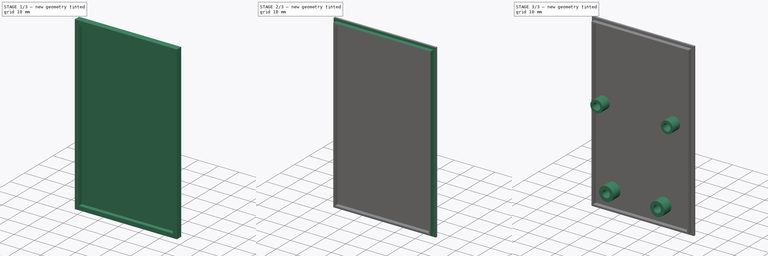
[diagram: build sequence overview — one tinted view per stage of 3, left to right]
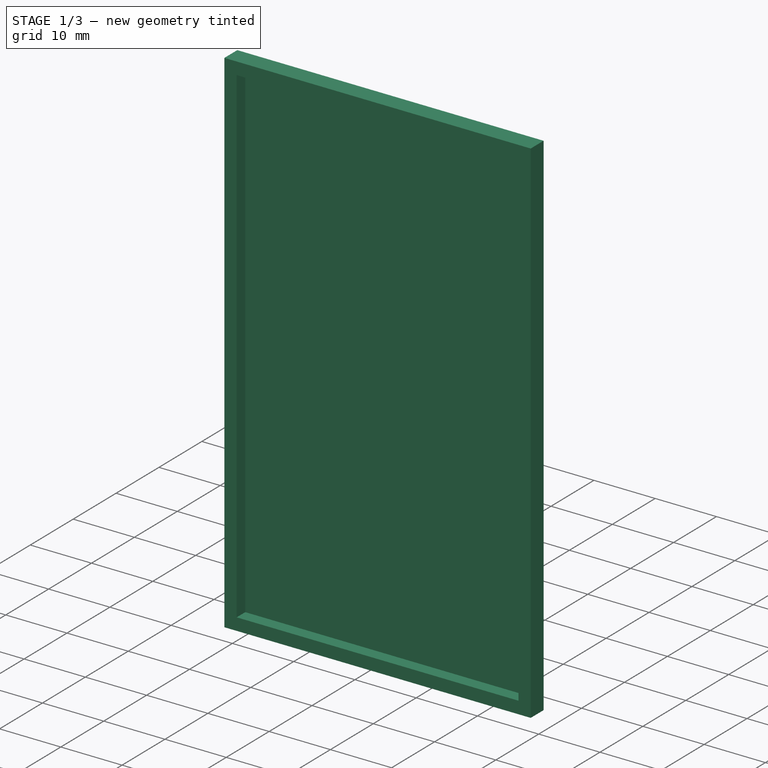
[diagram: stage 1 of 3 — iso view after this stage's code; geometry added in this stage tinted green]
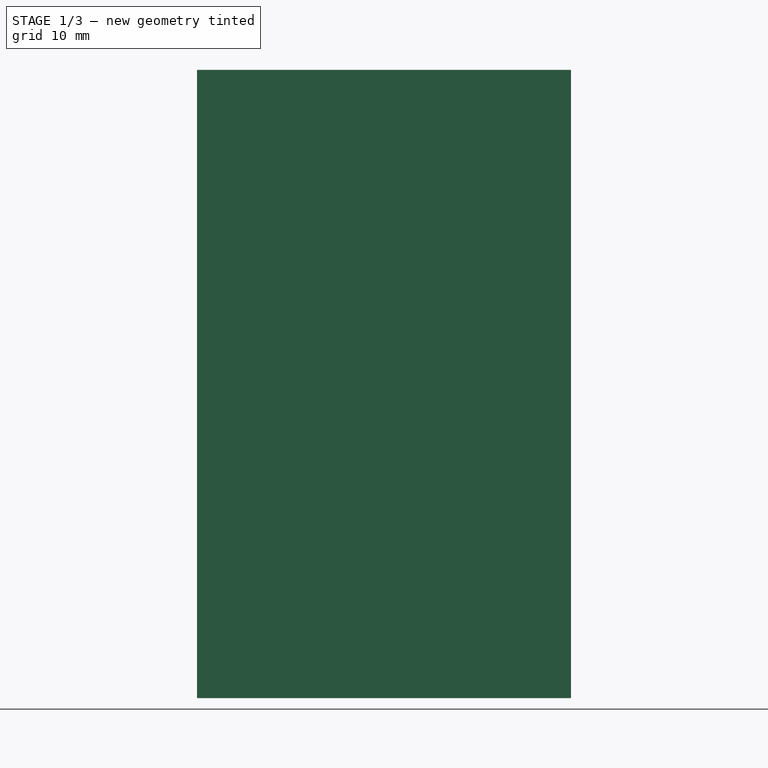
[diagram: stage 1 of 3 — front view after this stage's code; geometry added in this stage tinted green]
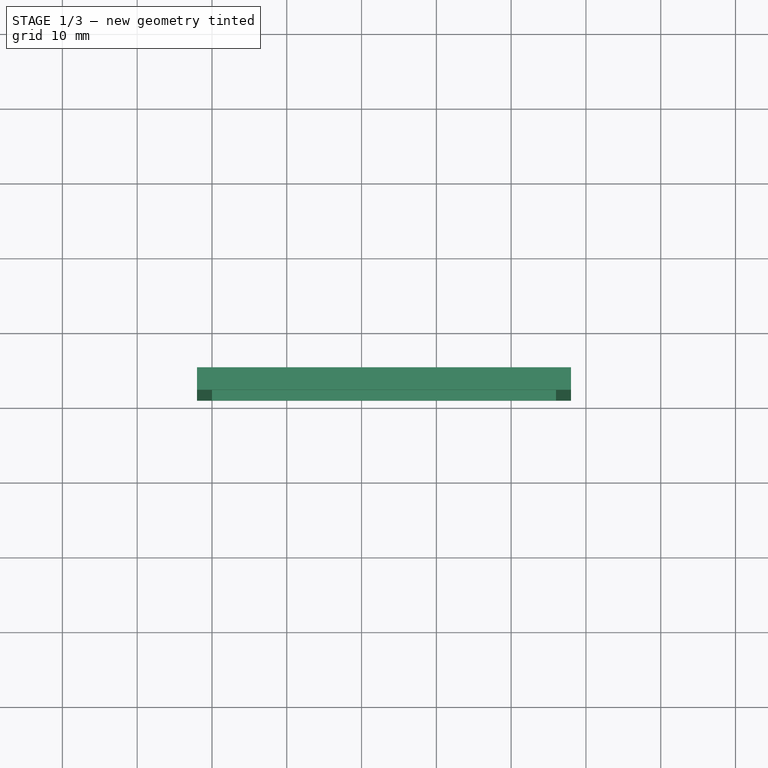
[diagram: stage 1 of 3 — top view after this stage's code; geometry added in this stage tinted green]
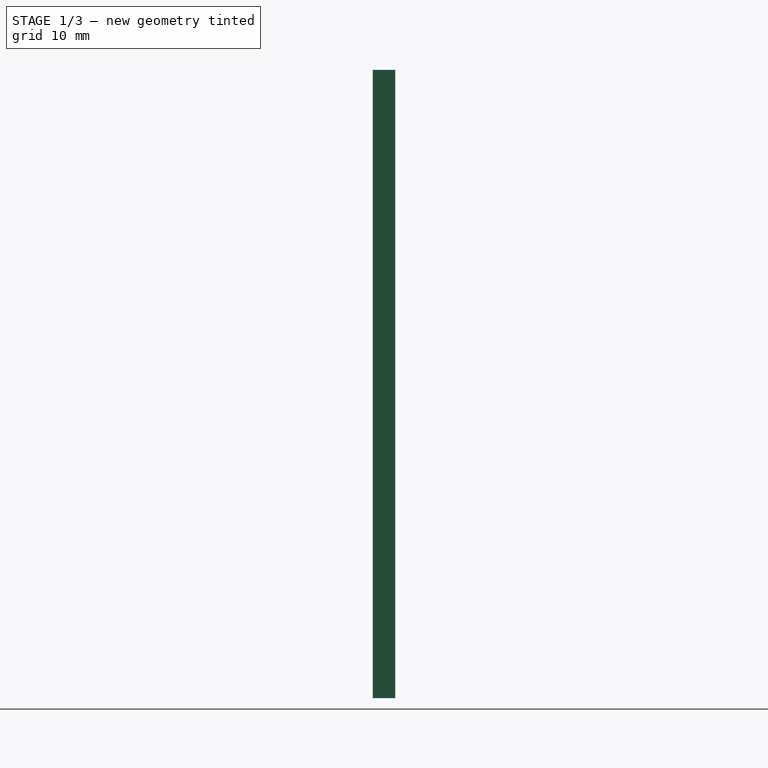
[diagram: stage 1 of 3 — right view after this stage's code; geometry added in this stage tinted green]
FCSTD DOCUMENT  (FreeCAD 1.0R39319 (Git))
Label: front-01
License: All rights reserved
LicenseURL: http://en.wikipedia.org/wiki/All_rights_reserved
objects: Sketcher::SketchObject×5, PartDesign::Pocket×3, PartDesign::Pad×2, PartDesign::Body×1, App::Part×1, Measure::MeasureDistance×1, App::DocumentObjectGroup×1
note: 26 computed .brp shape members not serialized (recipe doc carries the construction recipe); baked Part::Feature solids carry a one-line shape summary decoded from their .brp

FEATURE [Sketcher::SketchObject] Sketch002
  ArcFitTolerance = 1e-06
  FullyConstrained = false
  MakeInternals = false
  MapMode = 5
  Placement = pos=(0,1,0) rot=(0,0.707107,0.707107;3.14159rad)
  sketch-geometry (10):
    g0: Circle [constr] CenterX=-38.25 CenterY=-16.5 CenterZ=0 NormalX=0 NormalY=0 NormalZ=1 AngleXU=0 Radius=2.5
    g1: Circle [constr] CenterX=-3.75 CenterY=-16.5 CenterZ=0 NormalX=0 NormalY=0 NormalZ=1 AngleXU=0 Radius=2.5
    g2: Circle [constr] CenterX=-33.5 CenterY=-54 CenterZ=0 NormalX=0 NormalY=0 NormalZ=1 AngleXU=0 Radius=2.5
    g3: Circle [constr] CenterX=-8.5 CenterY=-54 CenterZ=0 NormalX=0 NormalY=0 NormalZ=1 AngleXU=0 Radius=2.5
    g4: LineSegment StartX=-44 StartY=-64 StartZ=0 EndX=2 EndY=-64 EndZ=0
    g5: LineSegment StartX=2 StartY=-64 StartZ=0 EndX=2 EndY=20 EndZ=0
    g6: LineSegment StartX=2 StartY=20 StartZ=0 EndX=-44 EndY=20 EndZ=0
    g7: LineSegment StartX=-44 StartY=20 StartZ=0 EndX=-48 EndY=20 EndZ=0
    g8: LineSegment StartX=-48 StartY=20 StartZ=0 EndX=-48 EndY=-64 EndZ=0
    g9: LineSegment StartX=-48 StartY=-64 StartZ=0 EndX=-44 EndY=-64 EndZ=0
  constraints (29):
    c: PointOnObject(g-6,g0)
    c: PointOnObject(g-5,g0)
    c: PointOnObject(g-7,g0)
    c: PointOnObject(g-9,g1)
    c: PointOnObject(g-10,g1)
    c: PointOnObject(g-11,g1)
    c: PointOnObject(g-13,g2)
    c: PointOnObject(g-14,g2)
    c: PointOnObject(g-15,g2)
    c: PointOnObject(g-16,g3)
    c: PointOnObject(g-17,g3)
    c: PointOnObject(g-18,g3)
    c: Coincident(g4,g5)
    c: Coincident(g5,g6)
    c: Vertical(g5)
    c: Horizontal(g4)
    c: Horizontal(g6)
    c: PointOnObject(g6,g-23)
    c: PointOnObject(g-24,g5)
    c: PointOnObject(g-26,g6)
    c: PointOnObject(g-25,g4)
    c: Coincident(g6,g7)
    c: Horizontal(g7)
    c: Coincident(g7,g8)
    c: Vertical(g8)
    c: Coincident(g8,g9)
    c: Coincident(g9,g4)
    c: Horizontal(g9)
    c: DistanceX(g7,g6) = 4
FEATURE [PartDesign::Pad] Pad
  Direction = (1e-16,1,-2e-16)
  Length = 3
  Length2 = 10
  Placement = pos=(0,1,0) rot=(0,0.707107,0.707107;3.14159rad)
  Profile = -> Sketch002
  ReferenceAxis = -> Sketch002 [N_Axis]
  Suppressed = false
  Type = 0
FEATURE [Sketcher::SketchObject] Sketch003
  ArcFitTolerance = 1e-06
  FullyConstrained = false
  MakeInternals = false
  MapMode = 5
  Placement = pos=(0,1,0) rot=(0,0.707107,0.707107;3.14159rad)
  sketch-geometry (10):
    g0: Circle [constr] CenterX=-38.25 CenterY=-16.5 CenterZ=0 NormalX=0 NormalY=0 NormalZ=1 AngleXU=0 Radius=2.5
    g1: Circle [constr] CenterX=-3.75 CenterY=-16.5 CenterZ=0 NormalX=0 NormalY=0 NormalZ=1 AngleXU=0 Radius=2.5
    g2: Circle [constr] CenterX=-33.5 CenterY=-54 CenterZ=0 NormalX=0 NormalY=0 NormalZ=1 AngleXU=0 Radius=2.5
    g3: Circle [constr] CenterX=-8.5 CenterY=-54 CenterZ=0 NormalX=0 NormalY=0 NormalZ=1 AngleXU=0 Radius=2.5
    g4: LineSegment StartX=-42 StartY=-62 StartZ=0 EndX=0 EndY=-62 EndZ=0
    g5: LineSegment StartX=0 StartY=-62 StartZ=0 EndX=0 EndY=18 EndZ=0
    g6: LineSegment StartX=0 StartY=18 StartZ=0 EndX=-42 EndY=18 EndZ=0
    g7: LineSegment StartX=-42 StartY=-62 StartZ=0 EndX=-46 EndY=-62 EndZ=0
    g8: LineSegment StartX=-46 StartY=-62 StartZ=0 EndX=-46 EndY=18 EndZ=0
    g9: LineSegment StartX=-46 StartY=18 StartZ=0 EndX=-42 EndY=18 EndZ=0
  constraints (27):
    c: PointOnObject(g-6,g0)
    c: PointOnObject(g-5,g0)
    c: PointOnObject(g-7,g0)
    c: PointOnObject(g-9,g1)
    c: PointOnObject(g-10,g1)
    c: PointOnObject(g-11,g1)
    c: PointOnObject(g-13,g2)
    c: PointOnObject(g-14,g2)
    c: PointOnObject(g-15,g2)
    c: PointOnObject(g-16,g3)
    c: PointOnObject(g-17,g3)
    c: PointOnObject(g-18,g3)
    c: Coincident(g4,g5)
    c: Coincident(g5,g6)
    c: Vertical(g5)
    c: Horizontal(g4)
    c: Horizontal(g6)
    c: Coincident(g4,g-4)
    c: Coincident(g4,g7)
    c: Horizontal(g7)
    c: Coincident(g7,g8)
    c: Vertical(g8)
    c: Coincident(g8,g9)
    c: Coincident(g9,g6)
    c: Coincident(g6,g-19)
    c: Horizontal(g9)
    c: DistanceX(g8,g6) = 4
FEATURE [PartDesign::Pocket] Pocket  label="CentralPocket"
  BaseFeature = -> Pad
  Direction = (-1e-16,-1,2e-16)
  Length = 2
  Length2 = 5
  Placement = pos=(0,1,0) rot=(0,0.707107,0.707107;3.14159rad)
  Profile = -> Sketch003
  ReferenceAxis = -> Sketch003 [N_Axis]
  Reversed = true
  Suppressed = false
  Type = 0
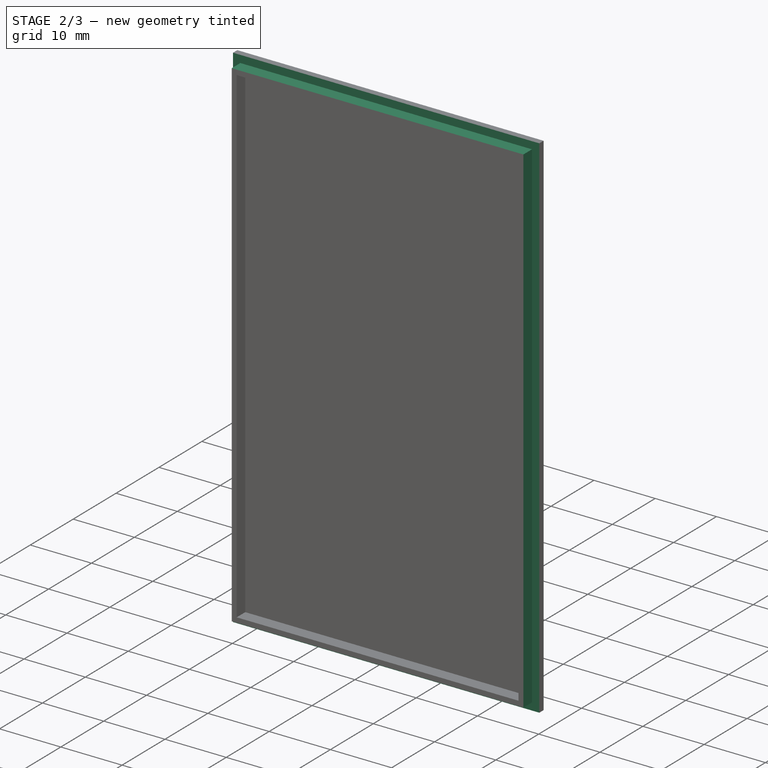
[diagram: stage 2 of 3 — iso view after this stage's code; geometry added in this stage tinted green]
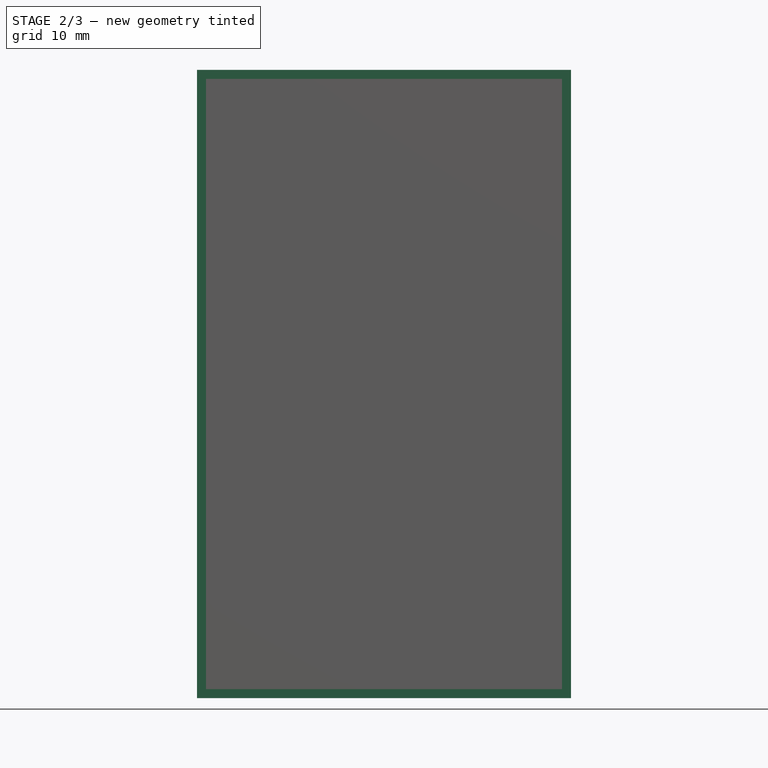
[diagram: stage 2 of 3 — front view after this stage's code; geometry added in this stage tinted green]
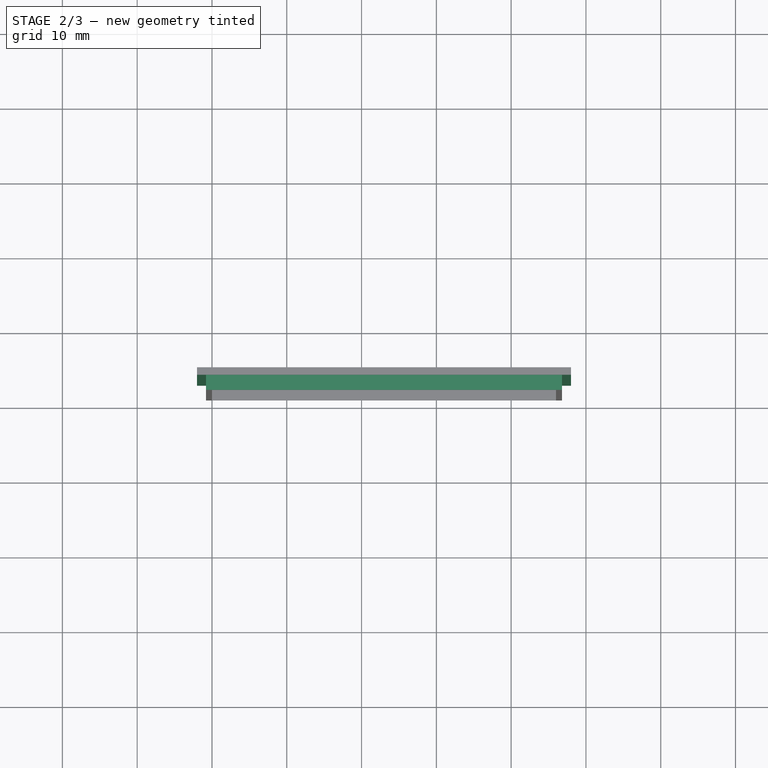
[diagram: stage 2 of 3 — top view after this stage's code; geometry added in this stage tinted green]
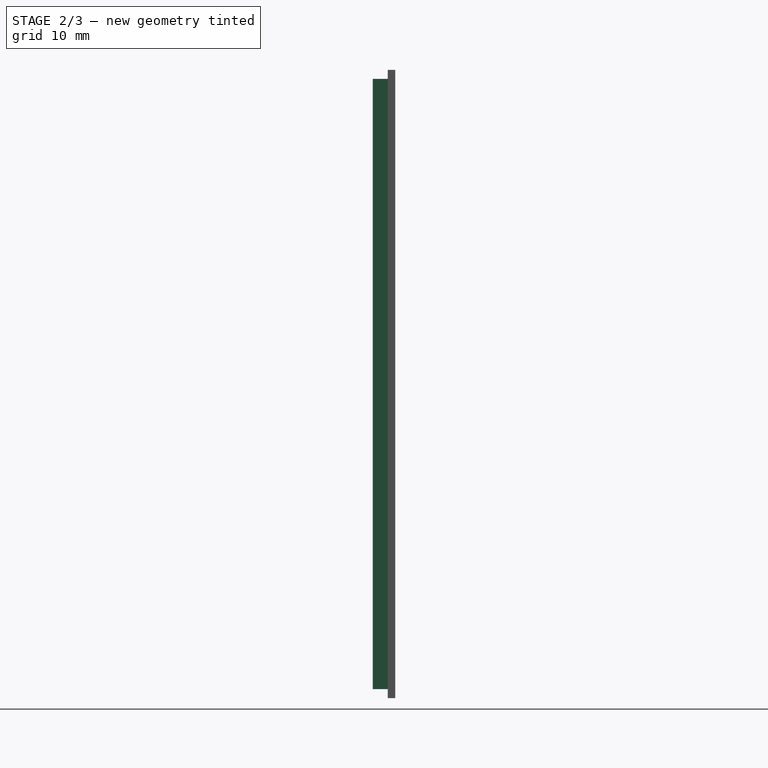
[diagram: stage 2 of 3 — right view after this stage's code; geometry added in this stage tinted green]
FEATURE [Sketcher::SketchObject] Sketch004
  ArcFitTolerance = 1e-06
  FullyConstrained = true
  MakeInternals = false
  MapMode = 5
  Placement = pos=(0,1,0) rot=(0,0.707107,0.707107;3.14159rad)
  sketch-geometry (16):
    g0: Circle [constr] CenterX=-38.25 CenterY=-16.5 CenterZ=0 NormalX=0 NormalY=0 NormalZ=1 AngleXU=0 Radius=2.5
    g1: Circle [constr] CenterX=-3.75 CenterY=-16.5 CenterZ=0 NormalX=0 NormalY=0 NormalZ=1 AngleXU=0 Radius=2.5
    g2: Circle [constr] CenterX=-33.5 CenterY=-54 CenterZ=0 NormalX=0 NormalY=0 NormalZ=1 AngleXU=0 Radius=2.5
    g3: Circle [constr] CenterX=-8.5 CenterY=-54 CenterZ=0 NormalX=0 NormalY=0 NormalZ=1 AngleXU=0 Radius=2.5
    g4: LineSegment [constr] StartX=-42 StartY=18 StartZ=0 EndX=-42 EndY=-62 EndZ=0
    g5: LineSegment [constr] StartX=-42 StartY=-62 StartZ=0 EndX=0 EndY=-62 EndZ=0
    g6: LineSegment [constr] StartX=0 StartY=-62 StartZ=0 EndX=0 EndY=18 EndZ=0
    g7: LineSegment [constr] StartX=0 StartY=18 StartZ=0 EndX=-42 EndY=18 EndZ=0
    g8: LineSegment StartX=2 StartY=20 StartZ=0 EndX=-48 EndY=20 EndZ=0
    g9: LineSegment StartX=-48 StartY=20 StartZ=0 EndX=-48 EndY=-64 EndZ=0
    g10: LineSegment StartX=-48 StartY=-64 StartZ=0 EndX=2 EndY=-64 EndZ=0
    g11: LineSegment StartX=2 StartY=-64 StartZ=0 EndX=2 EndY=20 EndZ=0
    g12: LineSegment StartX=-46.8 StartY=18.8 StartZ=0 EndX=-46.8 EndY=-62.8 EndZ=0
    g13: LineSegment StartX=-46.8 StartY=-62.8 StartZ=0 EndX=0.8 EndY=-62.8 EndZ=0
    g14: LineSegment StartX=0.8 StartY=-62.8 StartZ=0 EndX=0.8 EndY=18.8 EndZ=0
    g15: LineSegment StartX=0.8 StartY=18.8 StartZ=0 EndX=-46.8 EndY=18.8 EndZ=0
  constraints (46):
    c: PointOnObject(g-6,g0)
    c: PointOnObject(g-5,g0)
    c: PointOnObject(g-7,g0)
    c: PointOnObject(g-9,g1)
    c: PointOnObject(g-10,g1)
    c: PointOnObject(g-11,g1)
    c: PointOnObject(g-13,g2)
    c: PointOnObject(g-14,g2)
    c: PointOnObject(g-15,g2)
    c: PointOnObject(g-16,g3)
    c: PointOnObject(g-17,g3)
    c: PointOnObject(g-18,g3)
    c: Coincident(g4,g5)
    c: Coincident(g5,g6)
    c: Coincident(g6,g7)
    c: Coincident(g7,g4)
    c: Vertical(g4)
    c: Vertical(g6)
    c: Horizontal(g5)
    c: Horizontal(g7)
    c: Coincident(g4,g-19)
    c: Coincident(g5,g-4)
    c: Horizontal(g8)
    c: Coincident(g8,g9)
    c: Vertical(g9)
    c: Coincident(g9,g10)
    c: Horizontal(g10)
    c: Coincident(g10,g11)
    c: Coincident(g11,g8)
    c: Vertical(g11)
    c: DistanceX(g8,g-23) = 4
    c: PointOnObject(g-25,g10)
    c: PointOnObject(g-26,g8)
    c: PointOnObject(g-24,g11)
    c: Coincident(g12,g13)
    c: Coincident(g13,g14)
    c: Coincident(g14,g15)
    c: Coincident(g15,g12)
    c: Vertical(g12)
    c: Vertical(g14)
    c: Horizontal(g13)
    c: Horizontal(g15)
    c: DistanceY(g12,g8) = 1.2
    c: DistanceX(g14,g8) = 1.2
    c: DistanceX(g9,g12) = 1.2
    c: DistanceY(g10,g13) = 1.2
FEATURE [PartDesign::Pocket] Pocket001  label="OusidePocket"
  BaseFeature = -> Pocket
  Direction = (-1e-16,-1,2e-16)
  Length = 2
  Length2 = 5
  Placement = pos=(0,1,0) rot=(0,0.707107,0.707107;3.14159rad)
  Profile = -> Sketch004
  ReferenceAxis = -> Sketch004 [N_Axis]
  Reversed = true
  Suppressed = false
  Type = 0
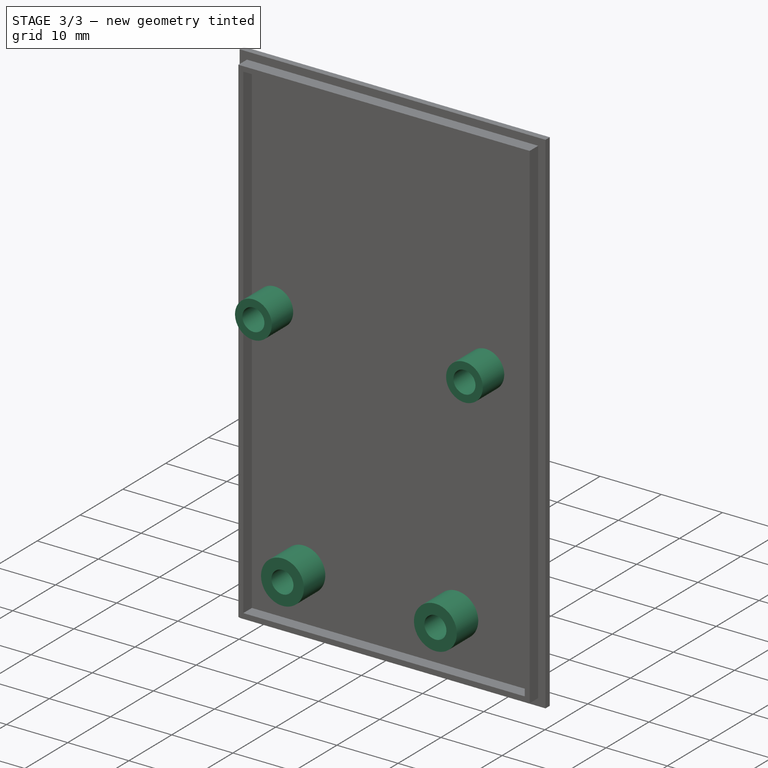
[diagram: stage 3 of 3 — iso view after this stage's code; geometry added in this stage tinted green]
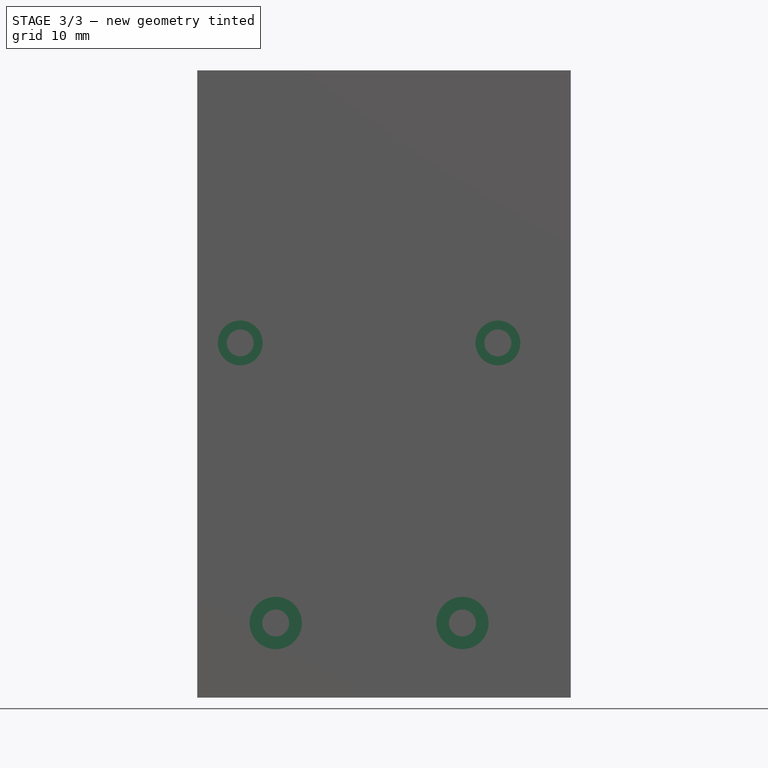
[diagram: stage 3 of 3 — front view after this stage's code; geometry added in this stage tinted green]
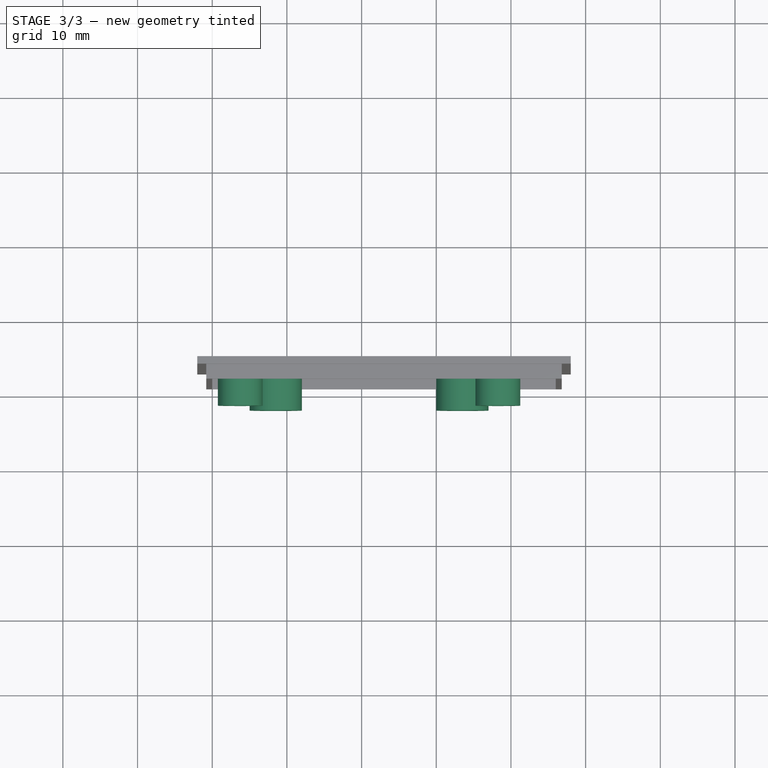
[diagram: stage 3 of 3 — top view after this stage's code; geometry added in this stage tinted green]
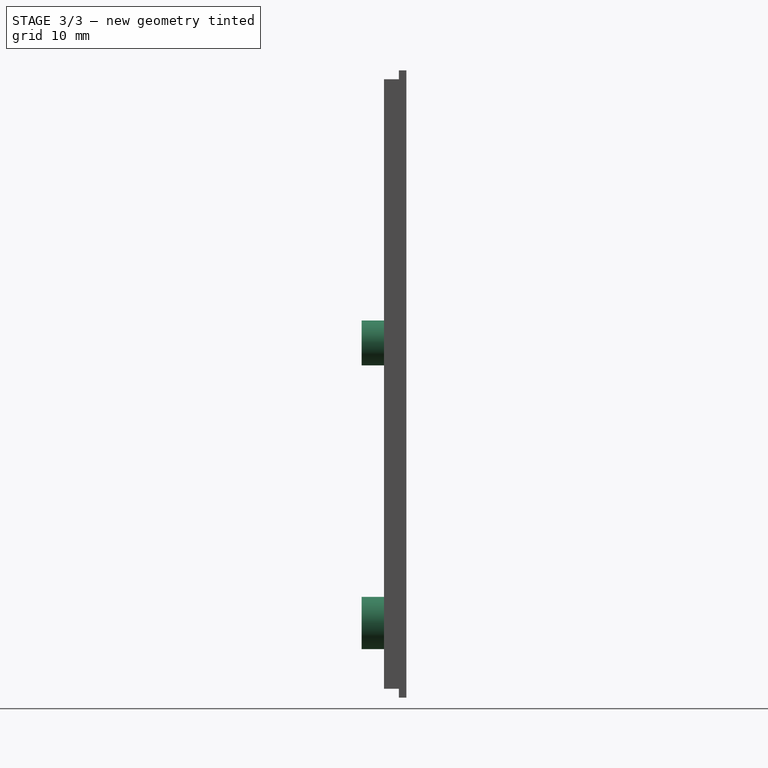
[diagram: stage 3 of 3 — right view after this stage's code; geometry added in this stage tinted green]
FEATURE [Sketcher::SketchObject] Sketch005  label="fat-peg001"
  ArcFitTolerance = 1e-06
  AttachmentSupport = -> [Pocket001]
  FullyConstrained = true
  MakeInternals = false
  MapMode = 5
  Placement = pos=(0,4,0) rot=(0,0.707107,0.707107;3.14159rad)
  sketch-geometry (8):
    g0: Circle [constr] CenterX=-38.25 CenterY=-16.5 CenterZ=0 NormalX=0 NormalY=0 NormalZ=1 AngleXU=0 Radius=2.5
    g1: Circle [constr] CenterX=-3.75 CenterY=-16.5 CenterZ=0 NormalX=0 NormalY=0 NormalZ=1 AngleXU=0 Radius=2.5
    g2: Circle [constr] CenterX=-33.5 CenterY=-54 CenterZ=0 NormalX=0 NormalY=0 NormalZ=1 AngleXU=0 Radius=2.5
    g3: Circle [constr] CenterX=-8.5 CenterY=-54 CenterZ=0 NormalX=0 NormalY=0 NormalZ=1 AngleXU=0 Radius=2.5
    g4: Circle CenterX=-33.5 CenterY=-54 CenterZ=0 NormalX=0 NormalY=0 NormalZ=1 AngleXU=0 Radius=3.5
    g5: Circle CenterX=-8.5 CenterY=-54 CenterZ=0 NormalX=0 NormalY=0 NormalZ=1 AngleXU=0 Radius=3.5
    g6: Circle CenterX=-38.25 CenterY=-16.5 CenterZ=0 NormalX=0 NormalY=0 NormalZ=1 AngleXU=0 Radius=3
    g7: Circle CenterX=-3.75 CenterY=-16.5 CenterZ=0 NormalX=0 NormalY=0 NormalZ=1 AngleXU=0 Radius=3
  constraints (20):
    c: PointOnObject(g-6,g0)
    c: PointOnObject(g-5,g0)
    c: PointOnObject(g-7,g0)
    c: PointOnObject(g-9,g1)
    c: PointOnObject(g-10,g1)
    c: PointOnObject(g-11,g1)
    c: PointOnObject(g-13,g2)
    c: PointOnObject(g-14,g2)
    c: PointOnObject(g-15,g2)
    c: PointOnObject(g-16,g3)
    c: PointOnObject(g-17,g3)
    c: PointOnObject(g-18,g3)
    c: Diameter(g4) = 7
    c: Coincident(g4,g2)
    c: Diameter(g5) = 7
    c: Coincident(g5,g3)
    c: Diameter(g6) = 6
    c: Coincident(g6,g0)
    c: Diameter(g7) = 6
    c: Coincident(g7,g1)
FEATURE [PartDesign::Pad] Pad001  label="fat peg"
  BaseFeature = -> Pocket001
  Direction = (0,1,-2e-16)
  Length = 6
  Length2 = 10
  Placement = pos=(0,1,0) rot=(0,0.707107,0.707107;3.14159rad)
  Profile = -> Sketch005
  ReferenceAxis = -> Sketch005 [N_Axis]
  Reversed = true
  Suppressed = false
  Type = 0
FEATURE [Sketcher::SketchObject] Sketch
  ArcFitTolerance = 1e-06
  AttachmentSupport = -> [Pad001]
  ExternalGeometry = -> [Pad001]
  FullyConstrained = true
  MakeInternals = false
  MapMode = 5
  Placement = pos=(0,-2,0) rot=(0,0.707107,-0.707107;3.14159rad)
  sketch-geometry (4):
    g0: Circle CenterX=-33.5 CenterY=54 CenterZ=0 NormalX=0 NormalY=0 NormalZ=1 AngleXU=0 Radius=1.8
    g1: Circle CenterX=-8.5 CenterY=54 CenterZ=0 NormalX=0 NormalY=0 NormalZ=1 AngleXU=0 Radius=1.8
    g2: Circle CenterX=-38.25 CenterY=16.5 CenterZ=0 NormalX=0 NormalY=0 NormalZ=1 AngleXU=0 Radius=1.8
    g3: Circle CenterX=-3.75 CenterY=16.5 CenterZ=0 NormalX=0 NormalY=0 NormalZ=1 AngleXU=0 Radius=1.8
  constraints (8):
    c: Diameter(g0) = 3.6
    c: Coincident(g0,g-3)
    c: Diameter(g1) = 3.6
    c: Coincident(g1,g-4)
    c: Diameter(g2) = 3.6
    c: Coincident(g2,g-5)
    c: Diameter(g3) = 3.6
    c: Coincident(g3,g-6)
FEATURE [PartDesign::Pocket] Pocket002  label="peg holes"
  BaseFeature = -> Pad001
  Direction = (0,1,2e-16)
  Length = 5
  Length2 = 5
  Placement = pos=(0,1,0) rot=(0,0.707107,0.707107;3.14159rad)
  Profile = -> Sketch
  ReferenceAxis = -> Sketch [N_Axis]
  Suppressed = false
  Type = 0
FEATURE [PartDesign::Body] Body
  AllowCompound = false
  Group = -> [Sketch002,Pad,Sketch003,Pocket,Sketch004,Pocket001,Sketch005,Pad001,Sketch,Pocket002]
  Origin = -> Origin001
  Tip = -> Pocket002
FEATURE [App::Part] Part
  Group = -> [Body]
  Origin = -> Origin
FEATURE [Measure::MeasureDistance] Distance  label="Distance: 1.20 mm"
  Distance = 1.2
  DistanceX = 1.2
  DistanceY = 4e-16
  DistanceZ = 7.1e-15
  Element1 = -> Part [Body.Pocket001.Face8]
  Element2 = -> Part [Body.Pocket001.Face9]
  Position1 = (48,3,-62.8)
  Position2 = (46.8,3,-62.8)
FEATURE [App::DocumentObjectGroup] Measurements
  Group = -> [Distance]
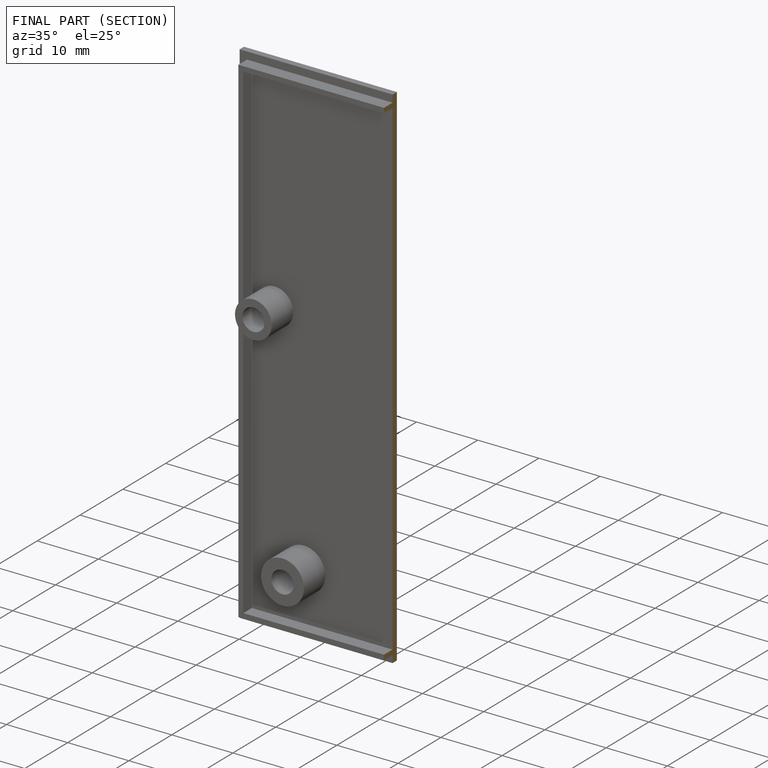
[diagram: finished part — half-section view (interior)]
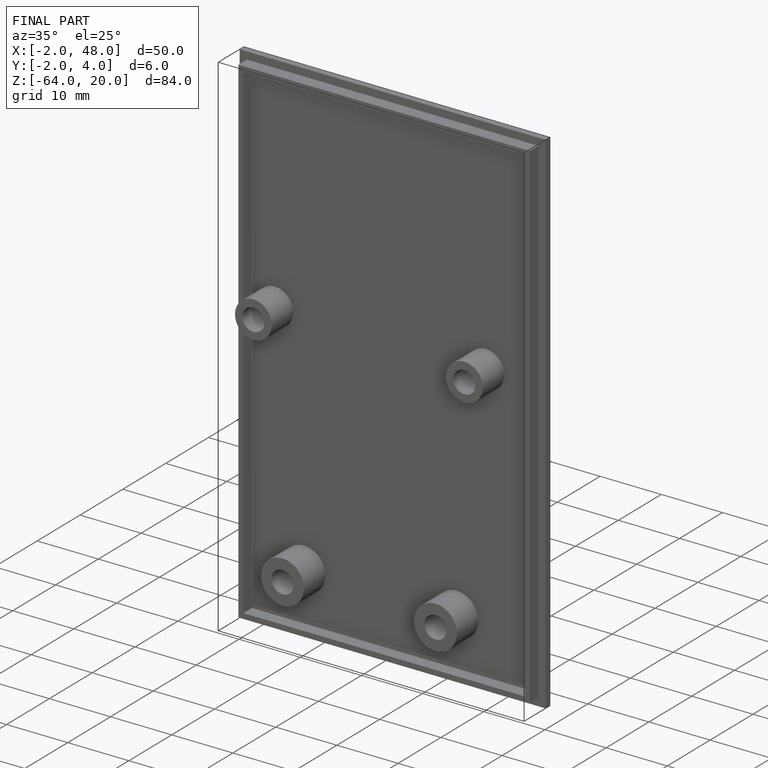
[diagram: finished part — iso view with bounding-box wireframe]
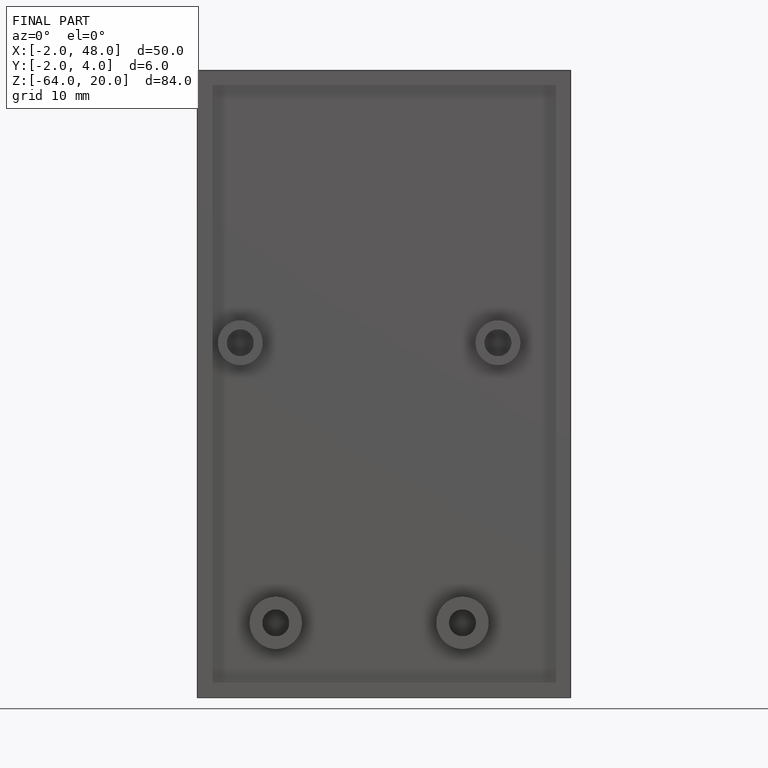
[diagram: finished part — front view with bounding-box wireframe]
